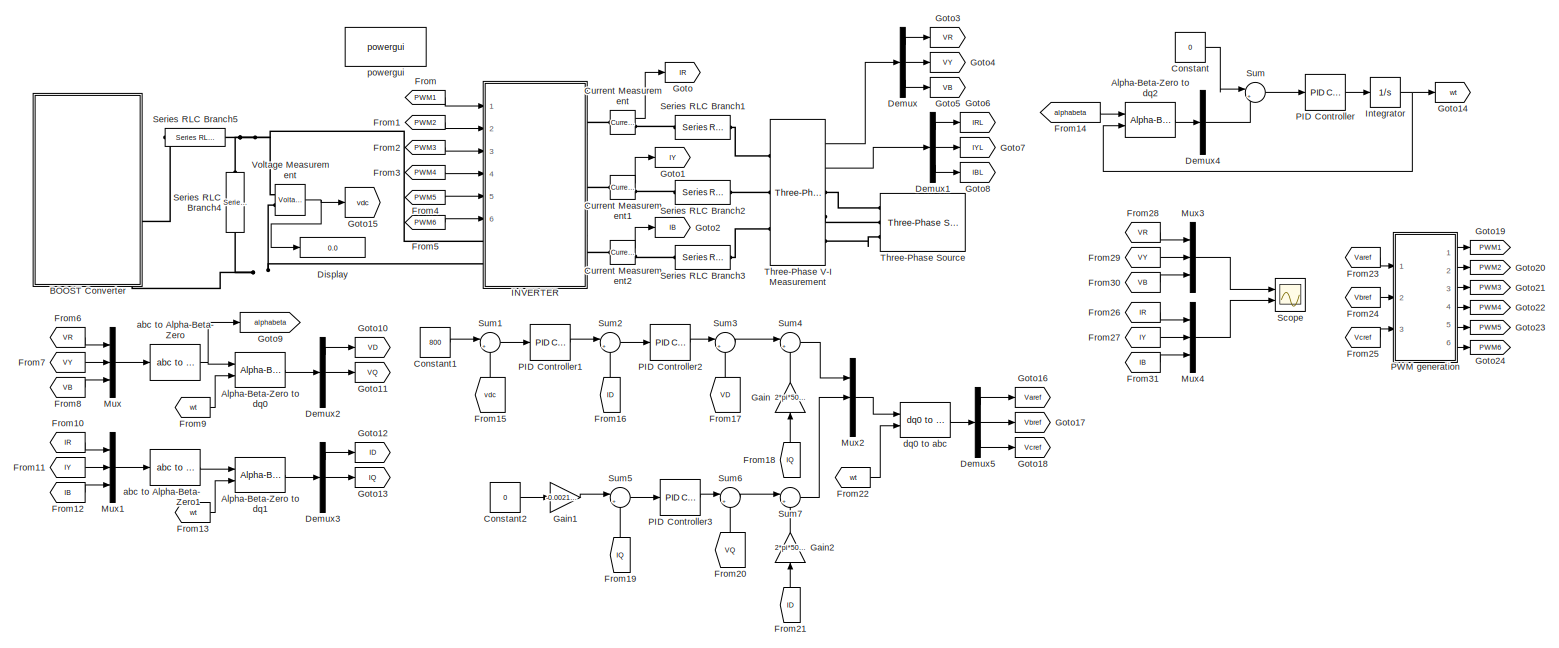
[diagram: root canvas - part 1/1, most of the canvas]
MODEL slx_d8d4e677bf20
KIND model
CONFIG AbsTol = auto
CONFIG EnableMultiTasking = off
CONFIG FixedStep = auto
CONFIG MaxStep = auto
CONFIG MinStep = auto
CONFIG RelTol = 1e-3
CONFIG SampleTimeConstraint = Unconstrained
CONFIG Solver = VariableStepAuto
CONFIG SolverName = VariableStepAuto
CONFIG StartTime = 0.0
CONFIG StopTime = 0.2
BLOCK [Reference] Alpha-Beta-Zero to dq0  REF=powerlib_meascontrol/Transformations/Alpha-Beta-Zero to dq0
  Ports = [2, 1]
  SourceBlock = powerlib_meascontrol/Transformations/Alpha-Beta-Zero to dq0
  SourceType = Alpha-Beta-Zero to dq0 Transformation
BLOCK [Reference] Alpha-Beta-Zero to dq1  REF=powerlib_meascontrol/Transformations/Alpha-Beta-Zero to dq0
  Ports = [2, 1]
  SourceBlock = powerlib_meascontrol/Transformations/Alpha-Beta-Zero to dq0
  SourceType = Alpha-Beta-Zero to dq0 Transformation
BLOCK [Reference] Alpha-Beta-Zero to dq2  REF=powerlib_meascontrol/Transformations/Alpha-Beta-Zero to dq0
  Ports = [2, 1]
  SourceBlock = powerlib_meascontrol/Transformations/Alpha-Beta-Zero to dq0
  SourceType = Alpha-Beta-Zero to dq0 Transformation
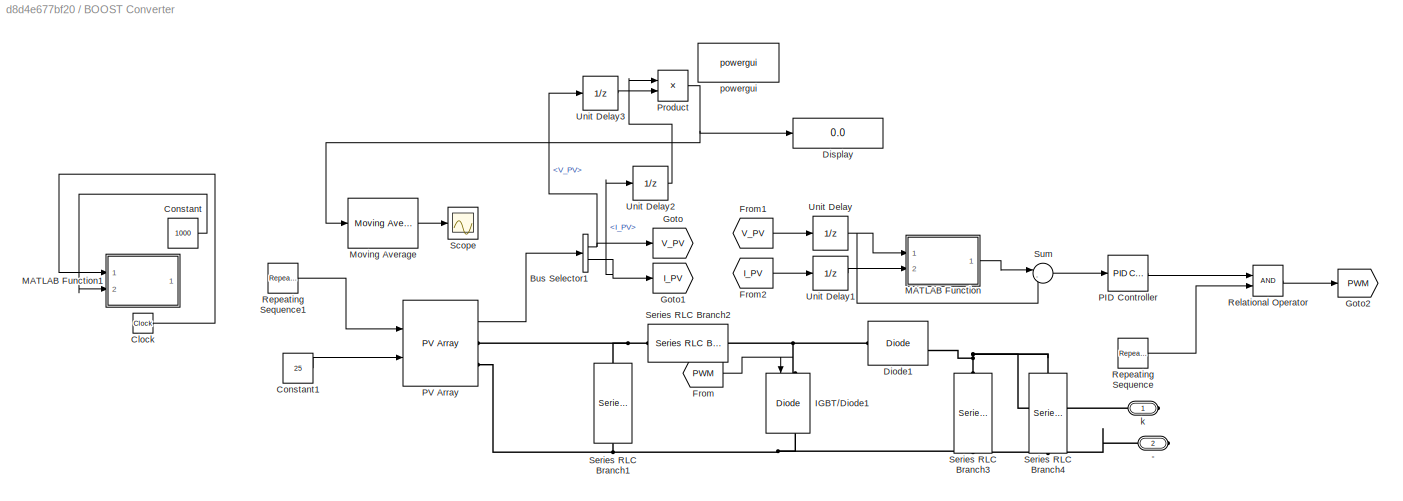
BLOCK [SubSystem] BOOST Converter
  Ports = [0, 0, 0, 0, 0, 0, 2]
BLOCK [PMIOPort] BOOST Converter/-
  Port = 2
  Side = Right
BLOCK [BusSelector] BOOST Converter/Bus Selector1
  OutputSignals = V_PV,I_PV
  Ports = [1, 2]
BLOCK [Clock] BOOST Converter/Clock
BLOCK [Constant] BOOST Converter/Constant
  Value = 1000
BLOCK [Constant] BOOST Converter/Constant1
  Value = 25
BLOCK [Reference] BOOST Converter/Diode1  REF=powerlib/Power Electronics/Diode
  Ports = [0, 1, 0, 0, 0, 1, 1]
  SourceBlock = powerlib/Power Electronics/Diode
  SourceType = Diode
BLOCK [Display] BOOST Converter/Display
  Decimation = 1
  Ports = [1]
BLOCK [From] BOOST Converter/From
  GotoTag = PWM
BLOCK [From] BOOST Converter/From1
  GotoTag = V_PV
BLOCK [From] BOOST Converter/From2
  GotoTag = I_PV
BLOCK [Goto] BOOST Converter/Goto
  GotoTag = V_PV
BLOCK [Goto] BOOST Converter/Goto1
  GotoTag = I_PV
BLOCK [Goto] BOOST Converter/Goto2
  GotoTag = PWM
BLOCK [Reference] BOOST Converter/IGBT//Diode1  REF=powerlib/Power Electronics/IGBT//Diode
  NameLocation = left
  Ports = [1, 1, 0, 0, 0, 1, 1]
  SourceBlock = powerlib/Power Electronics/IGBT//Diode
  SourceType = IGBT/Diode
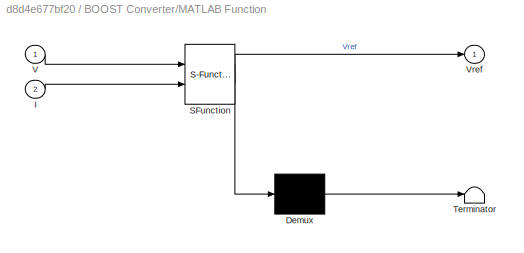
BLOCK [SubSystem] BOOST Converter/MATLAB Function
  ErrorFcn = Stateflow.Translate.translate
  PermitHierarchicalResolution = ExplicitOnly
  Ports = [2, 1]
  SFBlockType = MATLAB Function
  TreatAsAtomicUnit = on
BLOCK [Demux] BOOST Converter/MATLAB Function/ Demux 
  Outputs = 1
  Ports = [1, 1]
BLOCK [S-Function] BOOST Converter/MATLAB Function/ SFunction 
  EnableBusSupport = on
  FunctionName = sf_sfun
  PortCounts = [2 2]
  Ports = [2, 2]
  SFcnIsStateOwnerBlock = off
  SFunctionDeploymentMode = off
  Tag = Stateflow S-Function 2
BLOCK [Terminator] BOOST Converter/MATLAB Function/ Terminator 
BLOCK [Inport] BOOST Converter/MATLAB Function/I
  Port = 2
BLOCK [Inport] BOOST Converter/MATLAB Function/V
BLOCK [Outport] BOOST Converter/MATLAB Function/Vref
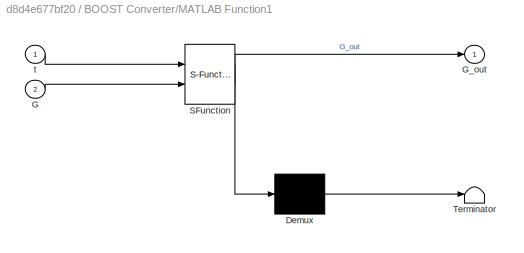
BLOCK [SubSystem] BOOST Converter/MATLAB Function1
  ErrorFcn = Stateflow.Translate.translate
  PermitHierarchicalResolution = ExplicitOnly
  Ports = [2, 1]
  SFBlockType = MATLAB Function
  TreatAsAtomicUnit = on
BLOCK [Demux] BOOST Converter/MATLAB Function1/ Demux 
  Outputs = 1
  Ports = [1, 1]
BLOCK [S-Function] BOOST Converter/MATLAB Function1/ SFunction 
  EnableBusSupport = on
  FunctionName = sf_sfun
  PortCounts = [2 2]
  Ports = [2, 2]
  SFcnIsStateOwnerBlock = off
  SFunctionDeploymentMode = off
  Tag = Stateflow S-Function 1
BLOCK [Terminator] BOOST Converter/MATLAB Function1/ Terminator 
BLOCK [Inport] BOOST Converter/MATLAB Function1/G
  Port = 2
BLOCK [Outport] BOOST Converter/MATLAB Function1/G_out
BLOCK [Inport] BOOST Converter/MATLAB Function1/t
BLOCK [Reference] BOOST Converter/Moving Average  REF=eeGeneralControl/Moving Average
  Ports = [1, 1]
  SourceBlock = eeGeneralControl/Moving Average
  SourceType = Moving Average
BLOCK [Reference] BOOST Converter/PID Controller  REF=simulink/Continuous/PID Controller
  Ports = [1, 1]
  SourceBlock = simulink/Continuous/PID Controller
  SourceType = PID 1dof
BLOCK [Reference] BOOST Converter/PV Array  REF=re_lib/Solar/PV Array
  Ports = [2, 1, 0, 0, 0, 0, 2]
  SourceBlock = re_lib/Solar/PV Array
  SourceType = PV array
BLOCK [Product] BOOST Converter/Product
  Ports = [2, 1]
BLOCK [RelationalOperator] BOOST Converter/Relational Operator
  InputSameDT = off
  OutDataTypeStr = boolean
  Ports = [2, 1]
  RndMeth = Simplest
BLOCK [Reference] BOOST Converter/Repeating Sequence  REF=simulink/Sources/Repeating
Sequence
  Ports = [0, 1]
  SourceBlock = simulink/Sources/Repeating\nSequence
  SourceType = Repeating table
BLOCK [Reference] BOOST Converter/Repeating Sequence1  REF=simulink/Sources/Repeating
Sequence
  Ports = [0, 1]
  SourceBlock = simulink/Sources/Repeating\nSequence
  SourceType = Repeating table
BLOCK [Scope] BOOST Converter/Scope
  Floating = off
  NumInputPorts = 1
  Ports = [1]
  ScopeSpecificationString = Simulink.scopes.TimeScopeBlockCfg('CurrentConfiguration', extmgr.ConfigurationSet(extmgr.Configuration('Core','General UI',true),extmgr.Configuration('Core','Source UI',true),extmgr.Configuration('Sources','WiredSimulink',true,'DataLoggingVariableName','ScopeData1'),extmgr.Configuration('Visuals','Time Domain',true,'SerializedDisplays',{struct('MinYLimReal','-11131.21795','MaxYLimReal','100230.961...<+1507ch>
BLOCK [Reference] BOOST Converter/Series RLC Branch1  REF=powerlib/Elements/Series RLC Branch
  NameLocation = left
  Ports = [0, 0, 0, 0, 0, 1, 1]
  SourceBlock = powerlib/Elements/Series RLC Branch
  SourceType = Series RLC Branch
BLOCK [Reference] BOOST Converter/Series RLC Branch2  REF=powerlib/Elements/Series RLC Branch
  NameLocation = top
  Ports = [0, 0, 0, 0, 0, 1, 1]
  SourceBlock = powerlib/Elements/Series RLC Branch
  SourceType = Series RLC Branch
BLOCK [Reference] BOOST Converter/Series RLC Branch3  REF=powerlib/Elements/Series RLC Branch
  NameLocation = right
  Ports = [0, 0, 0, 0, 0, 1, 1]
  SourceBlock = powerlib/Elements/Series RLC Branch
  SourceType = Series RLC Branch
BLOCK [Reference] BOOST Converter/Series RLC Branch4  REF=powerlib/Elements/Series RLC Branch
  NameLocation = right
  Ports = [0, 0, 0, 0, 0, 1, 1]
  SourceBlock = powerlib/Elements/Series RLC Branch
  SourceType = Series RLC Branch
BLOCK [Sum] BOOST Converter/Sum
  Inputs = |-+
  Ports = [2, 1]
BLOCK [UnitDelay] BOOST Converter/Unit Delay
  HasFrameUpgradeWarning = on
  SampleTime = 1e-4
BLOCK [UnitDelay] BOOST Converter/Unit Delay1
  HasFrameUpgradeWarning = on
  SampleTime = 1e-4
BLOCK [UnitDelay] BOOST Converter/Unit Delay2
  HasFrameUpgradeWarning = on
  InitialCondition = 1
  SampleTime = 1e-4
BLOCK [UnitDelay] BOOST Converter/Unit Delay3
  HasFrameUpgradeWarning = on
  InitialCondition = 1
  SampleTime = 1e-4
BLOCK [PMIOPort] BOOST Converter/k
  Side = Right
BLOCK [Reference] BOOST Converter/powergui  REF=powerlib/powergui
  Ports = []
  Priority = 1
  SourceBlock = powerlib/powergui
  SourceType = PSB option menu block
BLOCK [Constant] Constant
  Value = 0
BLOCK [Constant] Constant1
  Value = 800
BLOCK [Constant] Constant2
  Value = 0
BLOCK [Reference] Current Measurement  REF=powerlib/Measurements/Current Measurement
  Ports = [0, 1, 0, 0, 0, 1, 1]
  SourceBlock = powerlib/Measurements/Current Measurement
  SourceType = Current Measurement
  UserDataPersistent = on
BLOCK [Reference] Current Measurement1  REF=powerlib/Measurements/Current Measurement
  Ports = [0, 1, 0, 0, 0, 1, 1]
  SourceBlock = powerlib/Measurements/Current Measurement
  SourceType = Current Measurement
  UserDataPersistent = on
BLOCK [Reference] Current Measurement2  REF=powerlib/Measurements/Current Measurement
  Ports = [0, 1, 0, 0, 0, 1, 1]
  SourceBlock = powerlib/Measurements/Current Measurement
  SourceType = Current Measurement
  UserDataPersistent = on
BLOCK [Demux] Demux
  Outputs = 3
  Ports = [1, 3]
BLOCK [Demux] Demux1
  Outputs = 3
  Ports = [1, 3]
BLOCK [Demux] Demux2
  Outputs = 3
  Ports = [1, 3]
BLOCK [Demux] Demux3
  Outputs = 3
  Ports = [1, 3]
BLOCK [Demux] Demux4
  Outputs = 3
  Ports = [1, 3]
BLOCK [Demux] Demux5
  Outputs = 3
  Ports = [1, 3]
BLOCK [Display] Display
  Decimation = 1
  Ports = [1]
BLOCK [From] From
  GotoTag = PWM1
BLOCK [From] From1
  GotoTag = PWM2
BLOCK [From] From10
  GotoTag = IR
BLOCK [From] From11
  GotoTag = IY
BLOCK [From] From12
  GotoTag = IB
BLOCK [From] From13
  GotoTag = wt
BLOCK [From] From14
  GotoTag = alphabeta
BLOCK [From] From15
  GotoTag = vdc
  NameLocation = right
BLOCK [From] From16
  GotoTag = ID
  NameLocation = right
BLOCK [From] From17
  GotoTag = VD
  NameLocation = right
BLOCK [From] From18
  GotoTag = IQ
  NameLocation = right
BLOCK [From] From19
  GotoTag = IQ
  NameLocation = right
BLOCK [From] From2
  GotoTag = PWM3
BLOCK [From] From20
  GotoTag = VQ
  NameLocation = right
BLOCK [From] From21
  GotoTag = ID
  NameLocation = right
BLOCK [From] From22
  GotoTag = wt
BLOCK [From] From23
  GotoTag = Varef
BLOCK [From] From24
  GotoTag = Vbref
BLOCK [From] From25
  GotoTag = Vcref
BLOCK [From] From26
  GotoTag = IR
BLOCK [From] From27
  GotoTag = IY
BLOCK [From] From28
  GotoTag = VR
BLOCK [From] From29
  GotoTag = VY
BLOCK [From] From3
  GotoTag = PWM4
BLOCK [From] From30
  GotoTag = VB
BLOCK [From] From31
  GotoTag = IB
BLOCK [From] From4
  GotoTag = PWM5
BLOCK [From] From5
  GotoTag = PWM6
BLOCK [From] From6
  GotoTag = VR
BLOCK [From] From7
  GotoTag = VY
BLOCK [From] From8
  GotoTag = VB
BLOCK [From] From9
  GotoTag = wt
BLOCK [Gain] Gain
  Gain = 2*pi*50*5e-3
  NameLocation = right
BLOCK [Gain] Gain1
  Gain = -0.0021436
BLOCK [Gain] Gain2
  Gain = 2*pi*50*5e-3
  NameLocation = right
BLOCK [Goto] Goto
  GotoTag = IR
BLOCK [Goto] Goto1
  GotoTag = IY
BLOCK [Goto] Goto10
  GotoTag = VD
BLOCK [Goto] Goto11
  GotoTag = VQ
BLOCK [Goto] Goto12
  GotoTag = ID
BLOCK [Goto] Goto13
  GotoTag = IQ
BLOCK [Goto] Goto14
  GotoTag = wt
BLOCK [Goto] Goto15
  GotoTag = vdc
BLOCK [Goto] Goto16
  GotoTag = Varef
BLOCK [Goto] Goto17
  GotoTag = Vbref
BLOCK [Goto] Goto18
  GotoTag = Vcref
BLOCK [Goto] Goto19
  GotoTag = PWM1
BLOCK [Goto] Goto2
  GotoTag = IB
BLOCK [Goto] Goto20
  GotoTag = PWM2
BLOCK [Goto] Goto21
  GotoTag = PWM3
BLOCK [Goto] Goto22
  GotoTag = PWM4
BLOCK [Goto] Goto23
  GotoTag = PWM5
BLOCK [Goto] Goto24
  GotoTag = PWM6
BLOCK [Goto] Goto3
  GotoTag = VR
BLOCK [Goto] Goto4
  GotoTag = VY
BLOCK [Goto] Goto5
  GotoTag = VB
BLOCK [Goto] Goto6
  GotoTag = IRL
BLOCK [Goto] Goto7
  GotoTag = IYL
BLOCK [Goto] Goto8
  GotoTag = IBL
BLOCK [Goto] Goto9
  GotoTag = alphabeta
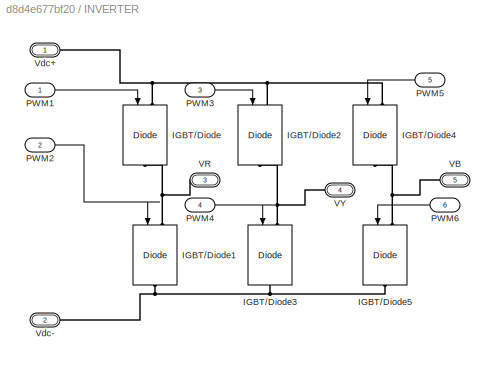
BLOCK [SubSystem] INVERTER
  Ports = [6, 0, 0, 0, 0, 2, 3]
BLOCK [Reference] INVERTER/IGBT//Diode  REF=powerlib/Power Electronics/IGBT//Diode
  NameLocation = left
  Ports = [1, 0, 0, 0, 0, 1, 1]
  SourceBlock = powerlib/Power Electronics/IGBT//Diode
  SourceType = IGBT/Diode
BLOCK [Reference] INVERTER/IGBT//Diode1  REF=powerlib/Power Electronics/IGBT//Diode
  NameLocation = left
  Ports = [1, 0, 0, 0, 0, 1, 1]
  SourceBlock = powerlib/Power Electronics/IGBT//Diode
  SourceType = IGBT/Diode
BLOCK [Reference] INVERTER/IGBT//Diode2  REF=powerlib/Power Electronics/IGBT//Diode
  NameLocation = left
  Ports = [1, 0, 0, 0, 0, 1, 1]
  SourceBlock = powerlib/Power Electronics/IGBT//Diode
  SourceType = IGBT/Diode
BLOCK [Reference] INVERTER/IGBT//Diode3  REF=powerlib/Power Electronics/IGBT//Diode
  NameLocation = left
  Ports = [1, 0, 0, 0, 0, 1, 1]
  SourceBlock = powerlib/Power Electronics/IGBT//Diode
  SourceType = IGBT/Diode
BLOCK [Reference] INVERTER/IGBT//Diode4  REF=powerlib/Power Electronics/IGBT//Diode
  NameLocation = left
  Ports = [1, 0, 0, 0, 0, 1, 1]
  SourceBlock = powerlib/Power Electronics/IGBT//Diode
  SourceType = IGBT/Diode
BLOCK [Reference] INVERTER/IGBT//Diode5  REF=powerlib/Power Electronics/IGBT//Diode
  NameLocation = left
  Ports = [1, 0, 0, 0, 0, 1, 1]
  SourceBlock = powerlib/Power Electronics/IGBT//Diode
  SourceType = IGBT/Diode
BLOCK [Inport] INVERTER/PWM1
BLOCK [Inport] INVERTER/PWM2
  Port = 2
BLOCK [Inport] INVERTER/PWM3
  Port = 3
BLOCK [Inport] INVERTER/PWM4
  Port = 4
BLOCK [Inport] INVERTER/PWM5
  Port = 5
BLOCK [Inport] INVERTER/PWM6
  Port = 6
BLOCK [PMIOPort] INVERTER/VB
  NameLocation = top
  Port = 5
  Side = Right
BLOCK [PMIOPort] INVERTER/VR
  NameLocation = top
  Port = 3
  Side = Right
BLOCK [PMIOPort] INVERTER/VY
  NameLocation = top
  Port = 4
  Side = Right
BLOCK [PMIOPort] INVERTER/Vdc+
  Side = Left
BLOCK [PMIOPort] INVERTER/Vdc-
  Port = 2
  Side = Left
BLOCK [Integrator] Integrator
  Ports = [1, 1]
BLOCK [Mux] Mux
  DisplayOption = bar
  Inputs = 3
  Ports = [3, 1]
BLOCK [Mux] Mux1
  DisplayOption = bar
  Inputs = 3
  Ports = [3, 1]
BLOCK [Mux] Mux2
  DisplayOption = bar
  Inputs = 3
  Ports = [3, 1]
BLOCK [Mux] Mux3
  DisplayOption = bar
  Inputs = 3
  Ports = [3, 1]
BLOCK [Mux] Mux4
  DisplayOption = bar
  Inputs = 3
  Ports = [3, 1]
BLOCK [Reference] PID Controller  REF=simulink/Continuous/PID Controller
  Ports = [1, 1]
  SourceBlock = simulink/Continuous/PID Controller
  SourceType = PID 1dof
BLOCK [Reference] PID Controller1  REF=simulink/Continuous/PID Controller
  Ports = [1, 1]
  SourceBlock = simulink/Continuous/PID Controller
  SourceType = PID 1dof
BLOCK [Reference] PID Controller2  REF=simulink/Continuous/PID Controller
  Ports = [1, 1]
  SourceBlock = simulink/Continuous/PID Controller
  SourceType = PID 1dof
BLOCK [Reference] PID Controller3  REF=simulink/Continuous/PID Controller
  Ports = [1, 1]
  SourceBlock = simulink/Continuous/PID Controller
  SourceType = PID 1dof
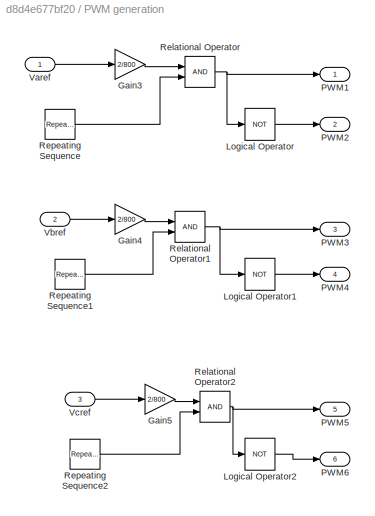
BLOCK [SubSystem] PWM generation
  Ports = [3, 6]
BLOCK [Gain] PWM generation/Gain3
  Gain = 2/800
BLOCK [Gain] PWM generation/Gain4
  Gain = 2/800
BLOCK [Gain] PWM generation/Gain5
  Gain = 2/800
BLOCK [Logic] PWM generation/Logical Operator
  AllPortsSameDT = off
  Operator = NOT
  OutDataTypeStr = boolean
  Ports = [1, 1]
BLOCK [Logic] PWM generation/Logical Operator1
  AllPortsSameDT = off
  Operator = NOT
  OutDataTypeStr = boolean
  Ports = [1, 1]
BLOCK [Logic] PWM generation/Logical Operator2
  AllPortsSameDT = off
  Operator = NOT
  OutDataTypeStr = boolean
  Ports = [1, 1]
BLOCK [Outport] PWM generation/PWM1
BLOCK [Outport] PWM generation/PWM2
  Port = 2
BLOCK [Outport] PWM generation/PWM3
  Port = 3
BLOCK [Outport] PWM generation/PWM4
  Port = 4
BLOCK [Outport] PWM generation/PWM5
  Port = 5
BLOCK [Outport] PWM generation/PWM6
  Port = 6
BLOCK [RelationalOperator] PWM generation/Relational Operator
  InputSameDT = off
  OutDataTypeStr = boolean
  Ports = [2, 1]
  RndMeth = Simplest
BLOCK [RelationalOperator] PWM generation/Relational Operator1
  InputSameDT = off
  OutDataTypeStr = boolean
  Ports = [2, 1]
  RndMeth = Simplest
BLOCK [RelationalOperator] PWM generation/Relational Operator2
  InputSameDT = off
  OutDataTypeStr = boolean
  Ports = [2, 1]
  RndMeth = Simplest
BLOCK [Reference] PWM generation/Repeating Sequence  REF=simulink/Sources/Repeating
Sequence
  Ports = [0, 1]
  SourceBlock = simulink/Sources/Repeating\nSequence
  SourceType = Repeating table
BLOCK [Reference] PWM generation/Repeating Sequence1  REF=simulink/Sources/Repeating
Sequence
  Ports = [0, 1]
  SourceBlock = simulink/Sources/Repeating\nSequence
  SourceType = Repeating table
BLOCK [Reference] PWM generation/Repeating Sequence2  REF=simulink/Sources/Repeating
Sequence
  Ports = [0, 1]
  SourceBlock = simulink/Sources/Repeating\nSequence
  SourceType = Repeating table
BLOCK [Inport] PWM generation/Varef
BLOCK [Inport] PWM generation/Vbref
  Port = 2
BLOCK [Inport] PWM generation/Vcref
  Port = 3
BLOCK [Scope] Scope
  Floating = off
  NumInputPorts = 2
  Ports = [2]
  ScopeSpecificationString = Simulink.scopes.TimeScopeBlockCfg('CurrentConfiguration', extmgr.ConfigurationSet(extmgr.Configuration('Core','General UI',true),extmgr.Configuration('Core','Source UI',true),extmgr.Configuration('Sources','WiredSimulink',true),extmgr.Configuration('Visuals','Time Domain',true,'SerializedDisplays',{struct('MinYLimReal','-733.62328','MaxYLimReal','733.62326','YLabelReal','','MinYLimMag',' 0.00000',...<+2091ch>
BLOCK [Reference] Series RLC Branch1  REF=powerlib/Elements/Series RLC Branch
  NameLocation = top
  Ports = [0, 0, 0, 0, 0, 1, 1]
  SourceBlock = powerlib/Elements/Series RLC Branch
  SourceType = Series RLC Branch
BLOCK [Reference] Series RLC Branch2  REF=powerlib/Elements/Series RLC Branch
  NameLocation = top
  Ports = [0, 0, 0, 0, 0, 1, 1]
  SourceBlock = powerlib/Elements/Series RLC Branch
  SourceType = Series RLC Branch
BLOCK [Reference] Series RLC Branch3  REF=powerlib/Elements/Series RLC Branch
  NameLocation = top
  Ports = [0, 0, 0, 0, 0, 1, 1]
  SourceBlock = powerlib/Elements/Series RLC Branch
  SourceType = Series RLC Branch
BLOCK [Reference] Series RLC Branch4  REF=powerlib/Elements/Series RLC Branch
  NameLocation = right
  Ports = [0, 0, 0, 0, 0, 1, 1]
  SourceBlock = powerlib/Elements/Series RLC Branch
  SourceType = Series RLC Branch
BLOCK [Reference] Series RLC Branch5  REF=powerlib/Elements/Series RLC Branch
  Ports = [0, 0, 0, 0, 0, 1, 1]
  SourceBlock = powerlib/Elements/Series RLC Branch
  SourceType = Series RLC Branch
BLOCK [Sum] Sum
  Inputs = |+-
  Ports = [2, 1]
BLOCK [Sum] Sum1
  Inputs = |+-
  Ports = [2, 1]
BLOCK [Sum] Sum2
  Inputs = |+-
  Ports = [2, 1]
BLOCK [Sum] Sum3
  Inputs = |++
  Ports = [2, 1]
BLOCK [Sum] Sum4
  Inputs = |+-
  Ports = [2, 1]
BLOCK [Sum] Sum5
  Inputs = |+-
  Ports = [2, 1]
BLOCK [Sum] Sum6
  Inputs = |++
  Ports = [2, 1]
BLOCK [Sum] Sum7
  Inputs = |++
  Ports = [2, 1]
BLOCK [Reference] Three-Phase Source  REF=powerlib/Electrical Sources/Three-Phase Source
  NameLocation = top
  Ports = [0, 0, 0, 0, 0, 0, 3]
  SourceBlock = powerlib/Electrical Sources/Three-Phase Source
  SourceType = Three-Phase Source
BLOCK [Reference] Three-Phase V-I Measurement  REF=powerlib/Measurements/Three-Phase V-I Measurement
  Ports = [0, 2, 0, 0, 0, 3, 3]
  SourceBlock = powerlib/Measurements/Three-Phase V-I Measurement
  SourceType = Three-Phase VI Measurement
BLOCK [Reference] Voltage Measurement  REF=powerlib/Measurements/Voltage Measurement
  Ports = [0, 1, 0, 0, 0, 2]
  SourceBlock = powerlib/Measurements/Voltage Measurement
  SourceType = Voltage Measurement
  UserDataPersistent = on
BLOCK [Reference] abc to Alpha-Beta-Zero  REF=powerlib_meascontrol/Transformations/abc to Alpha-Beta-Zero
  Ports = [1, 1]
  SourceBlock = powerlib_meascontrol/Transformations/abc to Alpha-Beta-Zero
  SourceType = abc to Alpha-Beta-Zero Transformation
BLOCK [Reference] abc to Alpha-Beta-Zero1  REF=powerlib_meascontrol/Transformations/abc to Alpha-Beta-Zero
  Ports = [1, 1]
  SourceBlock = powerlib_meascontrol/Transformations/abc to Alpha-Beta-Zero
  SourceType = abc to Alpha-Beta-Zero Transformation
BLOCK [Reference] dq0 to abc  REF=powerlib_meascontrol/Transformations/dq0 to abc
  Ports = [2, 1]
  SourceBlock = powerlib_meascontrol/Transformations/dq0 to abc
  SourceType = dq0 to abc Transformation
BLOCK [Reference] powergui  REF=powerlib/powergui
  Ports = []
  Priority = 1
  SourceBlock = powerlib/powergui
  SourceType = PSB option menu block
LINE Alpha-Beta-Zero to dq0:1 -> Demux2:1
LINE Alpha-Beta-Zero to dq1:1 -> Demux3:1
LINE Alpha-Beta-Zero to dq2:1 -> Demux4:1
NET BOOST Converter/Bus Selector1:1 -> BOOST Converter/Goto:1, BOOST Converter/Unit Delay3:1
NET BOOST Converter/Bus Selector1:2 -> BOOST Converter/Goto1:1, BOOST Converter/Unit Delay2:1
LINE BOOST Converter/Clock:1 -> BOOST Converter/MATLAB Function1:1
LINE BOOST Converter/Constant1:1 -> BOOST Converter/PV Array:2
LINE BOOST Converter/Constant:1 -> BOOST Converter/MATLAB Function1:2
LINE BOOST Converter/From1:1 -> BOOST Converter/Unit Delay:1
LINE BOOST Converter/From2:1 -> BOOST Converter/Unit Delay1:1
LINE BOOST Converter/From:1 -> BOOST Converter/IGBT//Diode1:1
LINE BOOST Converter/MATLAB Function:1 -> BOOST Converter/Sum:1
LINE BOOST Converter/Moving Average:1 -> BOOST Converter/Scope:1
LINE BOOST Converter/PID Controller:1 -> BOOST Converter/Relational Operator:1
LINE BOOST Converter/PV Array:1 -> BOOST Converter/Bus Selector1:1
NET BOOST Converter/Product:1 -> BOOST Converter/Display:1, BOOST Converter/Moving Average:1
LINE BOOST Converter/Relational Operator:1 -> BOOST Converter/Goto2:1
LINE BOOST Converter/Repeating Sequence1:1 -> BOOST Converter/PV Array:1
LINE BOOST Converter/Repeating Sequence:1 -> BOOST Converter/Relational Operator:2
LINE BOOST Converter/Sum:1 -> BOOST Converter/PID Controller:1
LINE BOOST Converter/Unit Delay1:1 -> BOOST Converter/MATLAB Function:2
LINE BOOST Converter/Unit Delay2:1 -> BOOST Converter/Product:1
LINE BOOST Converter/Unit Delay3:1 -> BOOST Converter/Product:2
NET BOOST Converter/Unit Delay:1 -> BOOST Converter/MATLAB Function:1, BOOST Converter/Sum:2
LINE Constant1:1 -> Sum1:1
LINE Constant2:1 -> Gain1:1
LINE Constant:1 -> Sum:1
LINE Current Measurement1:1 -> Goto1:1
LINE Current Measurement2:1 -> Goto2:1
LINE Current Measurement:1 -> Goto:1
LINE Demux1:1 -> Goto6:1
LINE Demux1:2 -> Goto7:1
LINE Demux1:3 -> Goto8:1
LINE Demux2:1 -> Goto10:1
LINE Demux2:2 -> Goto11:1
LINE Demux3:1 -> Goto12:1
LINE Demux3:2 -> Goto13:1
LINE Demux4:2 -> Sum:2
LINE Demux5:1 -> Goto16:1
LINE Demux5:2 -> Goto17:1
LINE Demux5:3 -> Goto18:1
LINE Demux:1 -> Goto3:1
LINE Demux:2 -> Goto4:1
LINE Demux:3 -> Goto5:1
LINE From10:1 -> Mux1:1
LINE From11:1 -> Mux1:2
LINE From12:1 -> Mux1:3
LINE From13:1 -> Alpha-Beta-Zero to dq1:2
LINE From14:1 -> Alpha-Beta-Zero to dq2:1
LINE From15:1 -> Sum1:2
LINE From16:1 -> Sum2:2
LINE From17:1 -> Sum3:2
LINE From18:1 -> Gain:1
LINE From19:1 -> Sum5:2
LINE From1:1 -> INVERTER:2
LINE From20:1 -> Sum6:2
LINE From21:1 -> Gain2:1
LINE From22:1 -> dq0 to abc:2
LINE From23:1 -> PWM generation:1
LINE From24:1 -> PWM generation:2
LINE From25:1 -> PWM generation:3
LINE From26:1 -> Mux4:1
LINE From27:1 -> Mux4:2
LINE From28:1 -> Mux3:1
LINE From29:1 -> Mux3:2
LINE From2:1 -> INVERTER:3
LINE From30:1 -> Mux3:3
LINE From31:1 -> Mux4:3
LINE From3:1 -> INVERTER:4
LINE From4:1 -> INVERTER:5
LINE From5:1 -> INVERTER:6
LINE From6:1 -> Mux:1
LINE From7:1 -> Mux:2
LINE From8:1 -> Mux:3
LINE From9:1 -> Alpha-Beta-Zero to dq0:2
LINE From:1 -> INVERTER:1
LINE Gain1:1 -> Sum5:1
LINE Gain2:1 -> Sum7:2
LINE Gain:1 -> Sum4:2
LINE INVERTER/PWM1:1 -> INVERTER/IGBT//Diode:1
LINE INVERTER/PWM2:1 -> INVERTER/IGBT//Diode1:1
LINE INVERTER/PWM3:1 -> INVERTER/IGBT//Diode2:1
LINE INVERTER/PWM4:1 -> INVERTER/IGBT//Diode3:1
LINE INVERTER/PWM5:1 -> INVERTER/IGBT//Diode4:1
LINE INVERTER/PWM6:1 -> INVERTER/IGBT//Diode5:1
NET Integrator:1 -> Alpha-Beta-Zero to dq2:2, Goto14:1
LINE Mux1:1 -> abc to Alpha-Beta-Zero1:1
LINE Mux2:1 -> dq0 to abc:1
LINE Mux3:1 -> Scope:1
LINE Mux4:1 -> Scope:2
LINE Mux:1 -> abc to Alpha-Beta-Zero:1
LINE PID Controller1:1 -> Sum2:1
LINE PID Controller2:1 -> Sum3:1
LINE PID Controller3:1 -> Sum6:1
LINE PID Controller:1 -> Integrator:1
LINE PWM generation/Gain3:1 -> PWM generation/Relational Operator:1
LINE PWM generation/Gain4:1 -> PWM generation/Relational Operator1:1
LINE PWM generation/Gain5:1 -> PWM generation/Relational Operator2:1
LINE PWM generation/Logical Operator1:1 -> PWM generation/PWM4:1
LINE PWM generation/Logical Operator2:1 -> PWM generation/PWM6:1
LINE PWM generation/Logical Operator:1 -> PWM generation/PWM2:1
NET PWM generation/Relational Operator1:1 -> PWM generation/Logical Operator1:1, PWM generation/PWM3:1
NET PWM generation/Relational Operator2:1 -> PWM generation/Logical Operator2:1, PWM generation/PWM5:1
NET PWM generation/Relational Operator:1 -> PWM generation/Logical Operator:1, PWM generation/PWM1:1
LINE PWM generation/Repeating Sequence1:1 -> PWM generation/Relational Operator1:2
LINE PWM generation/Repeating Sequence2:1 -> PWM generation/Relational Operator2:2
LINE PWM generation/Repeating Sequence:1 -> PWM generation/Relational Operator:2
LINE PWM generation/Varef:1 -> PWM generation/Gain3:1
LINE PWM generation/Vbref:1 -> PWM generation/Gain4:1
LINE PWM generation/Vcref:1 -> PWM generation/Gain5:1
LINE PWM generation:1 -> Goto19:1
LINE PWM generation:2 -> Goto20:1
LINE PWM generation:3 -> Goto21:1
LINE PWM generation:4 -> Goto22:1
LINE PWM generation:5 -> Goto23:1
LINE PWM generation:6 -> Goto24:1
LINE Sum1:1 -> PID Controller1:1
LINE Sum2:1 -> PID Controller2:1
LINE Sum3:1 -> Sum4:1
LINE Sum4:1 -> Mux2:1
LINE Sum5:1 -> PID Controller3:1
LINE Sum6:1 -> Sum7:1
LINE Sum7:1 -> Mux2:2
LINE Sum:1 -> PID Controller:1
LINE Three-Phase V-I Measurement:1 -> Demux:1
LINE Three-Phase V-I Measurement:2 -> Demux1:1
NET Voltage Measurement:1 -> Display:1, Goto15:1
LINE abc to Alpha-Beta-Zero1:1 -> Alpha-Beta-Zero to dq1:1
NET abc to Alpha-Beta-Zero:1 -> Alpha-Beta-Zero to dq0:1, Goto9:1
LINE dq0 to abc:1 -> Demux5:1
PNET net1: BOOST Converter/-:RConn1 -- BOOST Converter/IGBT//Diode1:RConn1 -- BOOST Converter/PV Array:RConn2 -- BOOST Converter/Series RLC Branch1:RConn1 -- BOOST Converter/Series RLC Branch3:LConn1 -- BOOST Converter/Series RLC Branch4:LConn1
PNET net2: BOOST Converter/Diode1:LConn1 -- BOOST Converter/IGBT//Diode1:LConn1 -- BOOST Converter/Series RLC Branch2:LConn1
PNET net3: BOOST Converter/Diode1:RConn1 -- BOOST Converter/Series RLC Branch3:RConn1 -- BOOST Converter/Series RLC Branch4:RConn1 -- BOOST Converter/k:RConn1
PNET net4: BOOST Converter/PV Array:RConn1 -- BOOST Converter/Series RLC Branch1:LConn1 -- BOOST Converter/Series RLC Branch2:RConn1
PNET net5: BOOST Converter:RConn1 -- INVERTER:LConn2 -- Series RLC Branch4:LConn1 -- Voltage Measurement:LConn2
PLINE BOOST Converter:RConn2 -- Series RLC Branch5:LConn1
PLINE Current Measurement1:LConn1 -- INVERTER:RConn2
PLINE Current Measurement1:RConn1 -- Series RLC Branch2:RConn1
PLINE Current Measurement2:LConn1 -- INVERTER:RConn3
PLINE Current Measurement2:RConn1 -- Series RLC Branch3:RConn1
PLINE Current Measurement:LConn1 -- INVERTER:RConn1
PLINE Current Measurement:RConn1 -- Series RLC Branch1:RConn1
PNET net6: INVERTER/IGBT//Diode1:LConn1 -- INVERTER/IGBT//Diode:RConn1 -- INVERTER/VR:RConn1
PNET net7: INVERTER/IGBT//Diode1:RConn1 -- INVERTER/IGBT//Diode3:RConn1 -- INVERTER/IGBT//Diode5:RConn1 -- INVERTER/Vdc-:RConn1
PNET net8: INVERTER/IGBT//Diode2:LConn1 -- INVERTER/IGBT//Diode4:LConn1 -- INVERTER/IGBT//Diode:LConn1 -- INVERTER/Vdc+:RConn1
PNET net9: INVERTER/IGBT//Diode2:RConn1 -- INVERTER/IGBT//Diode3:LConn1 -- INVERTER/VY:RConn1
PNET net10: INVERTER/IGBT//Diode4:RConn1 -- INVERTER/IGBT//Diode5:LConn1 -- INVERTER/VB:RConn1
PNET net11: INVERTER:LConn1 -- Series RLC Branch4:RConn1 -- Series RLC Branch5:RConn1 -- Voltage Measurement:LConn1
PLINE Series RLC Branch1:LConn1 -- Three-Phase V-I Measurement:LConn1
PLINE Series RLC Branch2:LConn1 -- Three-Phase V-I Measurement:LConn2
PLINE Series RLC Branch3:LConn1 -- Three-Phase V-I Measurement:LConn3
PLINE Three-Phase Source:RConn1 -- Three-Phase V-I Measurement:RConn1
PLINE Three-Phase Source:RConn2 -- Three-Phase V-I Measurement:RConn2
PLINE Three-Phase Source:RConn3 -- Three-Phase V-I Measurement:RConn3
note: NET lines group one-source signal fan-out (src -> all destinations, sorted); 1:1 wires keep LINE; PNET lines group multi-terminal physical nets as a canonical sorted terminal list (undirected conserving connections); 2-terminal nets keep the pairwise PLINE form
CHART BOOST Converter/MATLAB Function states=1 transitions=1
  STATE_LABEL 'eML_blk_kernel()'
  STATE_LABEL "SCRIPT:\nfunction Vref = refGen(V,I)\n\nVrefmax=363;\nVrefmin=0;\nVrefinit=300;\ndeltaVref=1;\npersistent Vold Pold Vrefold;\n\ndatatype = 'double';\n\nif isempty(Vold)\n    Vold=0\n    Pold=0\n    Vrefold=Vrefinit\nend\n\nP = V*I;\ndV=V-Vold;\ndP=P-Pold;\n\nif dP ~= 0\n    if dP<0\n        if dV<0\n            Vref=Vrefold+deltaVref;\n        else\n            Vref=Vrefold-deltaVref;\n        end\n    else\n        if dV<0\n ...<+225ch>"
CHART BOOST Converter/MATLAB Function1 states=1 transitions=1
  STATE_LABEL 'eML_blk_kernel()'
  STATE_LABEL 'SCRIPT:\nfunction G_out = func(t, G)\n    if t > 0.1 && t <= 0.2\n        G_out = 800;\n    elseif t > 0 && t <= 0.1\n        G_out = 1000;\n    elseif t > 0.2 && t <= 0.3\n        G_out = 1200;\n    elseif t > 0.4 && t <= 0.5\n        G_out = 1100;\n    else\n        G_out = G;\n    end\nend'
CHART  states=0 transitions=0
CHART  states=0 transitions=0
